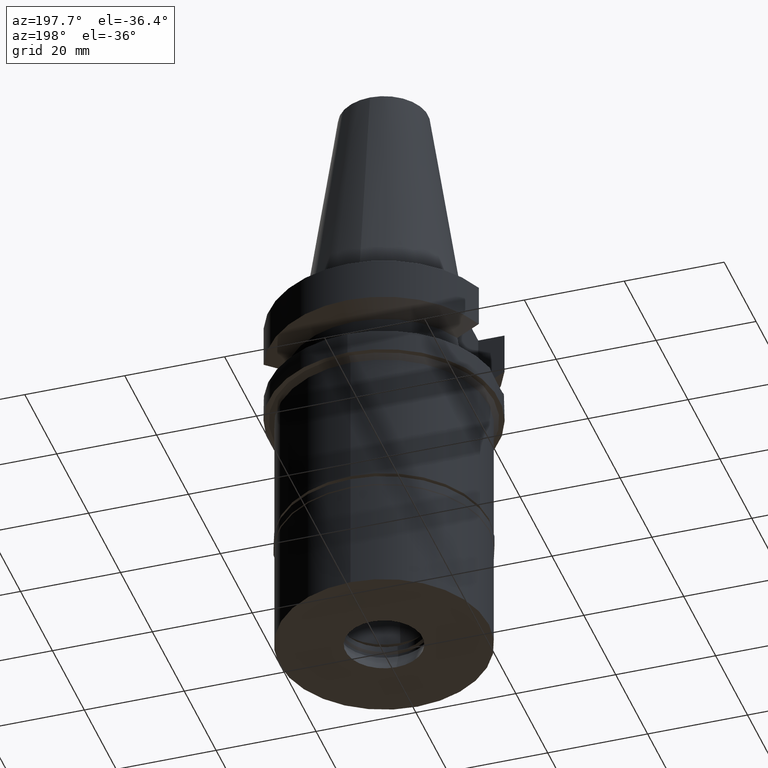
[diagram: clean part render]
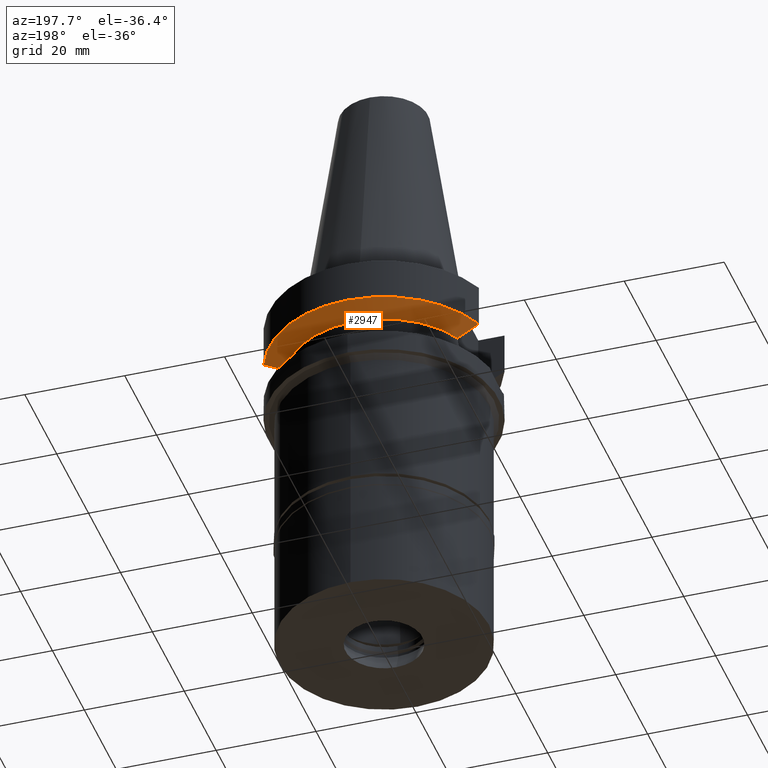
[diagram: same view with one face highlighted and labeled with its STEP entity id]
A machine part, auxiliary view. The second image highlights one B-rep face of the part: STEP entity #2947.
In plain terms, the highlighted conical surface has half-angle 60 deg.
Its self-contained STEP definition (entity closure, byte-faithful):
#67 = DIRECTION ( 'NONE',  ( 0.0000000000000000000, 0.0000000000000000000, 1.000000000000000000 ) ) ;
#68 = EDGE_CURVE ( 'NONE', #2837, #210, #812, .T. ) ;
#73 = CARTESIAN_POINT ( 'NONE',  ( 18.96738966530000070, 8.049994318182998043, -10.95000099923000114 ) ) ;
#145 = DIRECTION ( 'NONE',  ( 0.0000000000000000000, 0.0000000000000000000, 1.000000000000000000 ) ) ;
#168 = ORIENTED_EDGE ( 'NONE', *, *, #2321, .F. ) ;
#185 = CARTESIAN_POINT ( 'NONE',  ( -20.64102060695731566, 8.050004185766365339, -10.05624058759409678 ) ) ;
#189 = CARTESIAN_POINT ( 'NONE',  ( 17.23531622902000038, 7.996491146276001771, -11.87660607782000000 ) ) ;
#210 = VERTEX_POINT ( 'NONE', #1344 ) ;
#331 = CARTESIAN_POINT ( 'NONE',  ( -17.23531135276000015, 7.996501749881999466, -11.87660739337000138 ) ) ;
#415 = CARTESIAN_POINT ( 'NONE',  ( -17.23531135276000015, 7.996501749881999466, -11.87660739337000138 ) ) ;
#623 = FACE_OUTER_BOUND ( 'NONE', #724, .T. ) ;
#697 = DIRECTION ( 'NONE',  ( 0.0000000000000000000, 1.000000000000000000, 0.0000000000000000000 ) ) ;
#724 = EDGE_LOOP ( 'NONE', ( #168, #836, #2394, #1055, #2351, #1980 ) ) ;
#743 = CARTESIAN_POINT ( 'NONE',  ( -21.54524231189000005, 8.050002094537999753, -9.567194606710000215 ) ) ;
#797 = CARTESIAN_POINT ( 'NONE',  ( 21.54524325238000060, 8.049999577379001181, -9.567211146543000311 ) ) ;
#812 = B_SPLINE_CURVE_WITH_KNOTS ( 'NONE', 3,
 ( #1526, #2182, #2932, #73 ),
 .UNSPECIFIED., .F., .F.,
 ( 4, 4 ),
 ( 0.0000000000000000000, 1.000000000000000000 ),
 .UNSPECIFIED. ) ;
#830 = EDGE_CURVE ( 'NONE', #1097, #1802, #1747, .T. ) ;
#836 = ORIENTED_EDGE ( 'NONE', *, *, #68, .T. ) ;
#843 = DIRECTION ( 'NONE',  ( 0.0000000000000000000, 1.000000000000000000, 0.0000000000000000000 ) ) ;
#925 = VERTEX_POINT ( 'NONE', #1230 ) ;
#1013 = CARTESIAN_POINT ( 'NONE',  ( 0.0000000000000000000, 1.093341284896999988E-14, -9.567208369710998639 ) ) ;
#1055 = ORIENTED_EDGE ( 'NONE', *, *, #2627, .F. ) ;
#1097 = VERTEX_POINT ( 'NONE', #1774 ) ;
#1100 = CARTESIAN_POINT ( 'NONE',  ( 18.96738966530000070, 8.049994318182998043, -10.95000099923000114 ) ) ;
#1230 = CARTESIAN_POINT ( 'NONE',  ( 17.23531622902000038, 7.996491146276001771, -11.87660607782000000 ) ) ;
#1252 = CARTESIAN_POINT ( 'NONE',  ( -18.30417674179421539, 8.050000009835176940, -11.30245975725131125 ) ) ;
#1296 = CARTESIAN_POINT ( 'NONE',  ( -17.72682657033755049, 8.027186144752379349, -11.61172868883279641 ) ) ;
#1344 = CARTESIAN_POINT ( 'NONE',  ( 18.96738966530000070, 8.049994318182998043, -10.95000099923000114 ) ) ;
#1364 = CARTESIAN_POINT ( 'NONE',  ( -19.78176599972490379, 8.050001300064970167, -10.51717224081961710 ) ) ;
#1381 = B_SPLINE_CURVE_WITH_KNOTS ( 'NONE', 3,
 ( #2208, #1252, #1296, #331 ),
 .UNSPECIFIED., .F., .F.,
 ( 4, 4 ),
 ( 0.0000000000000000000, 1.000000000000000000 ),
 .UNSPECIFIED. ) ;
#1420 = CARTESIAN_POINT ( 'NONE',  ( -21.54524231189000005, 8.050002094537999753, -9.567194606710000215 ) ) ;
#1526 = CARTESIAN_POINT ( 'NONE',  ( 21.54524325238000060, 8.049999577379001181, -9.567211146543000311 ) ) ;
#1546 = CARTESIAN_POINT ( 'NONE',  ( 18.30334768190532557, 8.049999956193227391, -11.30291651679201870 ) ) ;
#1548 = CARTESIAN_POINT ( 'NONE',  ( 0.0000000000000000000, 1.093341284896999988E-14, -10.72190890808999875 ) ) ;
#1552 = AXIS2_PLACEMENT_3D ( 'NONE', #1548, #145, #843 ) ;
#1606 = AXIS2_PLACEMENT_3D ( 'NONE', #1013, #67, #2691 ) ;
#1747 = B_SPLINE_CURVE_WITH_KNOTS ( 'NONE', 3,
 ( #2750, #1364, #185, #743 ),
 .UNSPECIFIED., .F., .F.,
 ( 4, 4 ),
 ( 0.0000000000000000000, 1.000000000000000000 ),
 .UNSPECIFIED. ) ;
#1755 = CIRCLE ( 'NONE', #1606, 23.00000000000000000 ) ;
#1774 = CARTESIAN_POINT ( 'NONE',  ( -18.96736186713000194, 8.050001278041001740, -10.94999977536999936 ) ) ;
#1802 = VERTEX_POINT ( 'NONE', #1420 ) ;
#1941 = CONICAL_SURFACE ( 'NONE', #1552, 21.00000000000000000, 1.047197551196400456 ) ;
#1980 = ORIENTED_EDGE ( 'NONE', *, *, #830, .T. ) ;
#2022 = CARTESIAN_POINT ( 'NONE',  ( 17.72598986981198976, 8.027133616248125492, -11.61218197823705545 ) ) ;
#2117 = CARTESIAN_POINT ( 'NONE',  ( 0.0000000000000000000, 1.093341284896999988E-14, -11.87660944646999894 ) ) ;
#2182 = CARTESIAN_POINT ( 'NONE',  ( 20.64098922513855783, 8.049999155450747068, -10.05625859774404773 ) ) ;
#2208 = CARTESIAN_POINT ( 'NONE',  ( -18.96736186713000194, 8.050001278041001740, -10.94999977536999936 ) ) ;
#2241 = CIRCLE ( 'NONE', #2930, 19.00000000000000000 ) ;
#2321 = EDGE_CURVE ( 'NONE', #2837, #1802, #1755, .T. ) ;
#2351 = ORIENTED_EDGE ( 'NONE', *, *, #2363, .F. ) ;
#2363 = EDGE_CURVE ( 'NONE', #1097, #2936, #1381, .T. ) ;
#2394 = ORIENTED_EDGE ( 'NONE', *, *, #2436, .F. ) ;
#2436 = EDGE_CURVE ( 'NONE', #925, #210, #2464, .T. ) ;
#2464 = B_SPLINE_CURVE_WITH_KNOTS ( 'NONE', 3,
 ( #189, #2022, #1546, #1100 ),
 .UNSPECIFIED., .F., .F.,
 ( 4, 4 ),
 ( 0.0000000000000000000, 1.000000000000000000 ),
 .UNSPECIFIED. ) ;
#2618 = DIRECTION ( 'NONE',  ( 0.0000000000000000000, 0.0000000000000000000, -1.000000000000000000 ) ) ;
#2627 = EDGE_CURVE ( 'NONE', #2936, #925, #2241, .T. ) ;
#2691 = DIRECTION ( 'NONE',  ( 0.0000000000000000000, 1.000000000000000000, 0.0000000000000000000 ) ) ;
#2750 = CARTESIAN_POINT ( 'NONE',  ( -18.96736186713000194, 8.050001278041001740, -10.94999977536999936 ) ) ;
#2837 = VERTEX_POINT ( 'NONE', #797 ) ;
#2930 = AXIS2_PLACEMENT_3D ( 'NONE', #2117, #2618, #697 ) ;
#2932 = CARTESIAN_POINT ( 'NONE',  ( 19.78174442298432112, 8.049991903556993122, -10.51718567366341972 ) ) ;
#2936 = VERTEX_POINT ( 'NONE', #415 ) ;
#2947 = ADVANCED_FACE ( 'NONE', ( #623 ), #1941, .T. ) ;